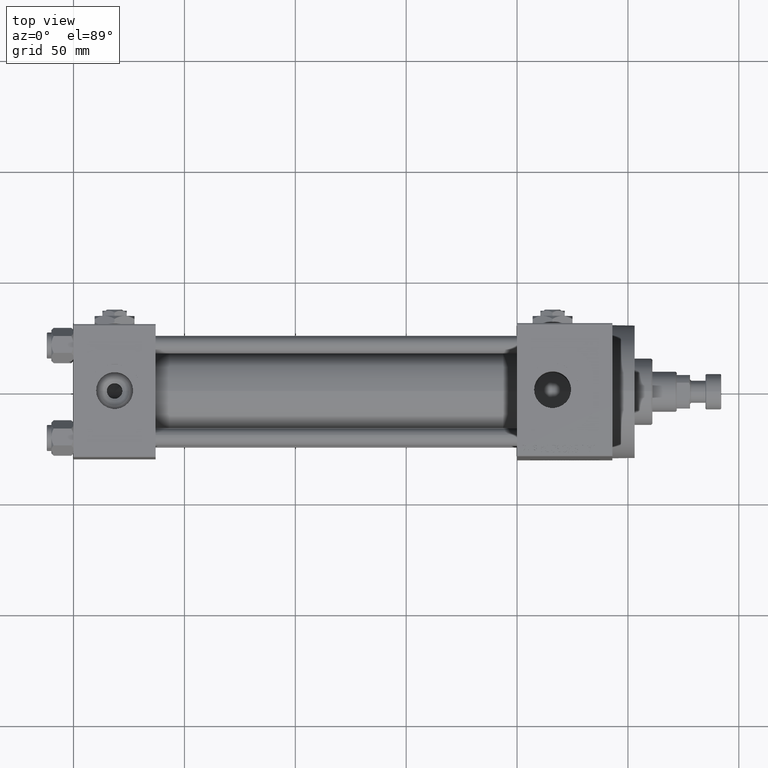
[diagram: clean part render]
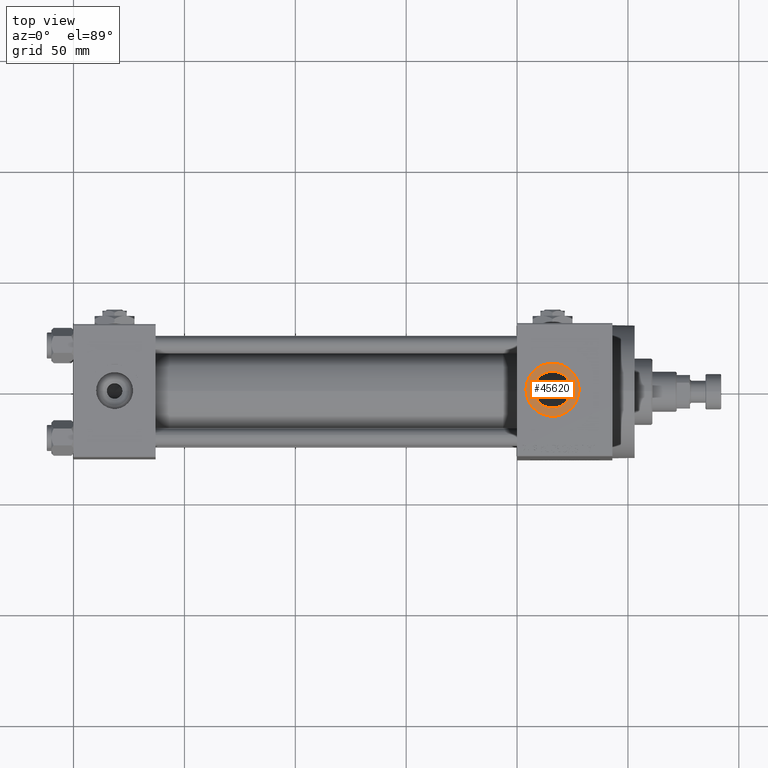
[diagram: same view with one face highlighted and labeled with its STEP entity id]
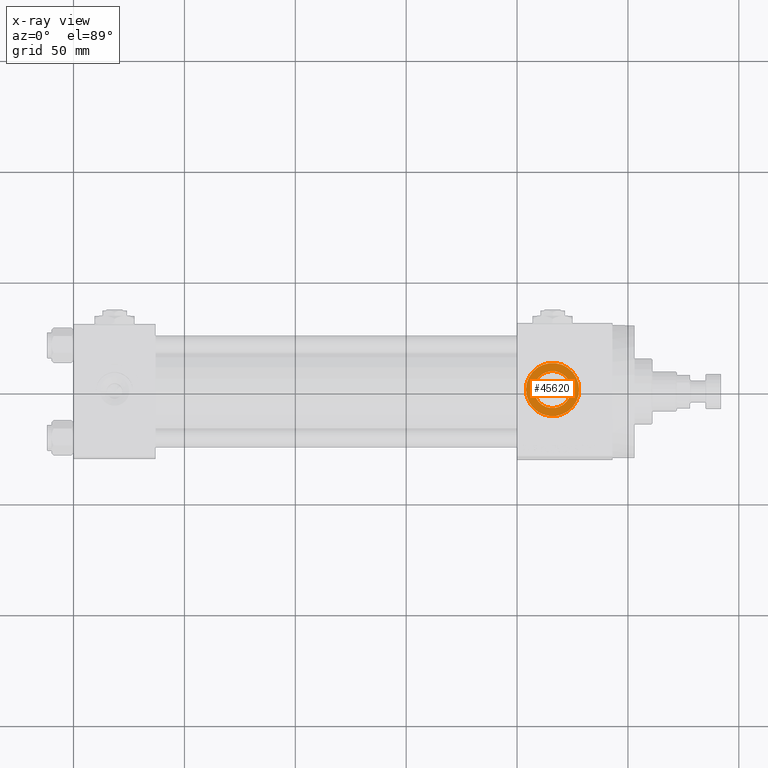
[diagram: x-ray of the same camera — body ghosted, the highlighted face saturated]
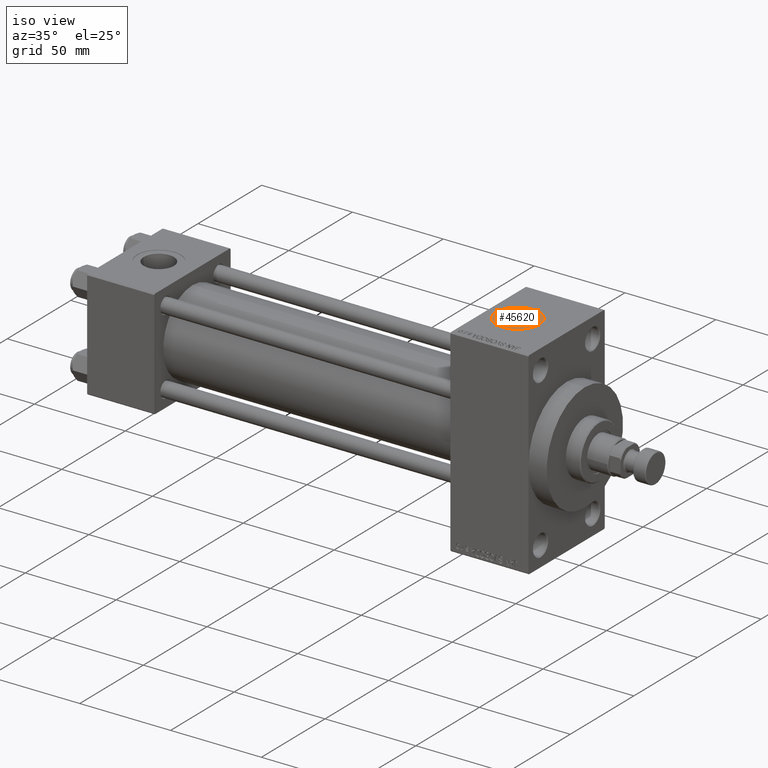
[diagram: same view with one face highlighted and labeled with its STEP entity id]
A machine part, top view. The second image highlights one B-rep face of the part: STEP entity #45620.
The next image is the same camera in x-ray: the body ghosted, the highlighted face saturated — about 0% of this face is hidden behind the body in this view.
A second angle (iso view) of the same face is appended — the face is thin or edge-on in the first view.
In plain terms, the highlighted planar face has unit normal (0, 0, 1).
Its self-contained STEP definition (entity closure, byte-faithful):
#1323 = AXIS2_PLACEMENT_3D ( 'NONE', #29051, #2896, #37354 ) ;
#1839 = AXIS2_PLACEMENT_3D ( 'NONE', #36927, #2465, #25837 ) ;
#2465 = DIRECTION ( 'NONE',  ( 0.000000000000000000, 0.000000000000000000, 1.000000000000000000 ) ) ;
#2896 = DIRECTION ( 'NONE',  ( -0.000000000000000000, -0.000000000000000000, -1.000000000000000000 ) ) ;
#3050 = ORIENTED_EDGE ( 'NONE', *, *, #22007, .T. ) ;
#3432 = CARTESIAN_POINT ( 'NONE',  ( 224.3300000000000409, 7.322959413072145713E-15, 54.29999999999999716 ) ) ;
#6641 = DIRECTION ( 'NONE',  ( -0.000000000000000000, -0.000000000000000000, -1.000000000000000000 ) ) ;
#7132 = FACE_BOUND ( 'NONE', #36460, .T. ) ;
#8126 = DIRECTION ( 'NONE',  ( 0.000000000000000000, 0.000000000000000000, 1.000000000000000000 ) ) ;
#10908 = CARTESIAN_POINT ( 'NONE',  ( 216.0000000000000284, 6.302828629382399373E-15, 54.29999999999999716 ) ) ;
#11867 = CARTESIAN_POINT ( 'NONE',  ( 228.0000000000000284, 6.302828629382399373E-15, 54.29999999999999716 ) ) ;
#12018 = DIRECTION ( 'NONE',  ( 1.000000000000000000, 0.000000000000000000, 0.000000000000000000 ) ) ;
#12670 = EDGE_LOOP ( 'NONE', ( #20157, #37521 ) ) ;
#15440 = FACE_OUTER_BOUND ( 'NONE', #12670, .T. ) ;
#19754 = CIRCLE ( 'NONE', #47836, 8.330000000000003624 ) ;
#20157 = ORIENTED_EDGE ( 'NONE', *, *, #22988, .T. ) ;
#21913 = CIRCLE ( 'NONE', #1839, 12.00000000000001066 ) ;
#22007 = EDGE_CURVE ( 'NONE', #24581, #43747, #39073, .T. ) ;
#22988 = EDGE_CURVE ( 'NONE', #25589, #41262, #45536, .T. ) ;
#23578 = CARTESIAN_POINT ( 'NONE',  ( 216.0000000000000284, 6.302828629382399373E-15, 54.29999999999999716 ) ) ;
#24581 = VERTEX_POINT ( 'NONE', #39309 ) ;
#25589 = VERTEX_POINT ( 'NONE', #11867 ) ;
#25837 = DIRECTION ( 'NONE',  ( 1.000000000000000000, 0.000000000000000000, 0.000000000000000000 ) ) ;
#28999 = CARTESIAN_POINT ( 'NONE',  ( 204.0000000000000284, 7.772404788359223517E-15, 54.29999999999999716 ) ) ;
#29051 = CARTESIAN_POINT ( 'NONE',  ( 216.0000000000000284, 6.302828629382400162E-15, 54.29999999999999716 ) ) ;
#30000 = PLANE ( 'NONE',  #42956 ) ;
#33492 = AXIS2_PLACEMENT_3D ( 'NONE', #23578, #46470, #12018 ) ;
#36460 = EDGE_LOOP ( 'NONE', ( #3050, #40176 ) ) ;
#36927 = CARTESIAN_POINT ( 'NONE',  ( 216.0000000000000284, 6.302828629382399373E-15, 54.29999999999999716 ) ) ;
#37354 = DIRECTION ( 'NONE',  ( 1.000000000000000000, 0.000000000000000000, 0.000000000000000000 ) ) ;
#37521 = ORIENTED_EDGE ( 'NONE', *, *, #37879, .T. ) ;
#37879 = EDGE_CURVE ( 'NONE', #41262, #25589, #21913, .T. ) ;
#39073 = CIRCLE ( 'NONE', #1323, 8.330000000000003624 ) ;
#39309 = CARTESIAN_POINT ( 'NONE',  ( 207.6700000000000159, 6.302828629382400162E-15, 54.29999999999999716 ) ) ;
#40176 = ORIENTED_EDGE ( 'NONE', *, *, #47556, .T. ) ;
#40860 = DIRECTION ( 'NONE',  ( 1.000000000000000000, 0.000000000000000000, 0.000000000000000000 ) ) ;
#41262 = VERTEX_POINT ( 'NONE', #28999 ) ;
#41350 = CARTESIAN_POINT ( 'NONE',  ( 216.0000000000000284, 6.302828629382400162E-15, 54.29999999999999716 ) ) ;
#42085 = DIRECTION ( 'NONE',  ( 1.000000000000000000, 0.000000000000000000, -0.000000000000000000 ) ) ;
#42956 = AXIS2_PLACEMENT_3D ( 'NONE', #10908, #8126, #42085 ) ;
#43747 = VERTEX_POINT ( 'NONE', #3432 ) ;
#45536 = CIRCLE ( 'NONE', #33492, 12.00000000000001066 ) ;
#45620 = ADVANCED_FACE ( 'NONE', ( #7132, #15440 ), #30000, .T. ) ;
#46470 = DIRECTION ( 'NONE',  ( 0.000000000000000000, 0.000000000000000000, 1.000000000000000000 ) ) ;
#47556 = EDGE_CURVE ( 'NONE', #43747, #24581, #19754, .T. ) ;
#47836 = AXIS2_PLACEMENT_3D ( 'NONE', #41350, #6641, #40860 ) ;